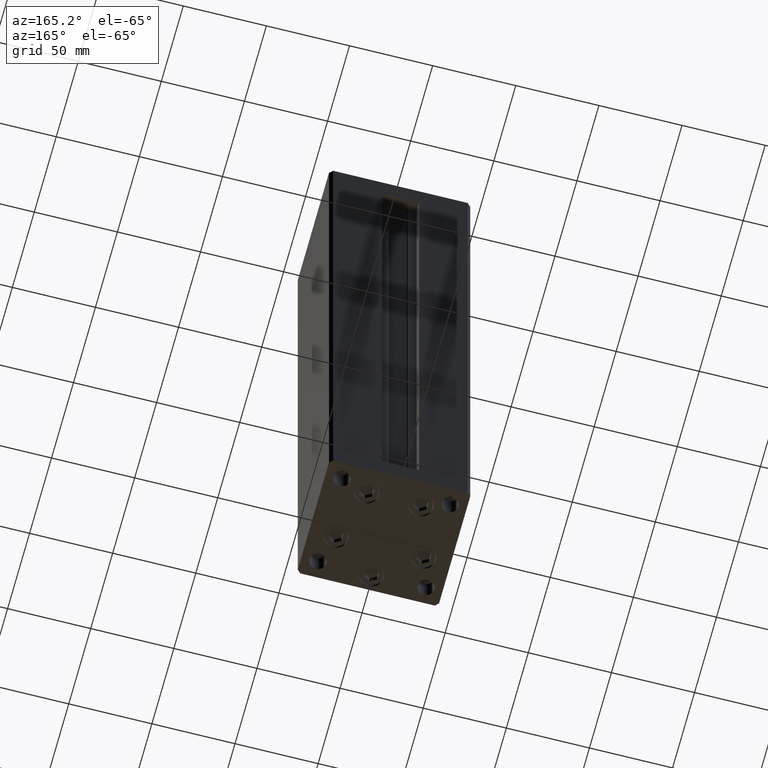
[diagram: clean part render]
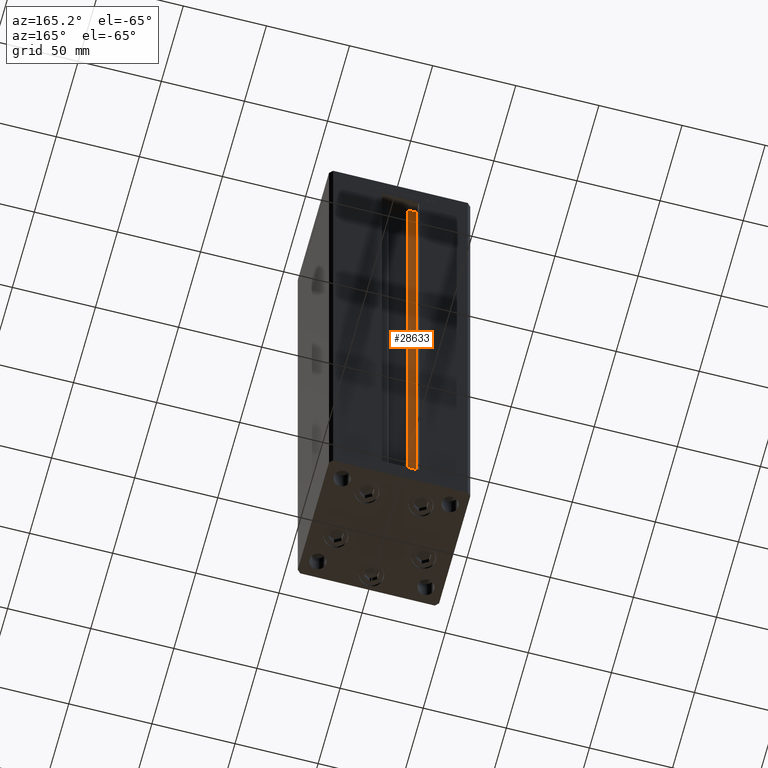
[diagram: same view with one face highlighted and labeled with its STEP entity id]
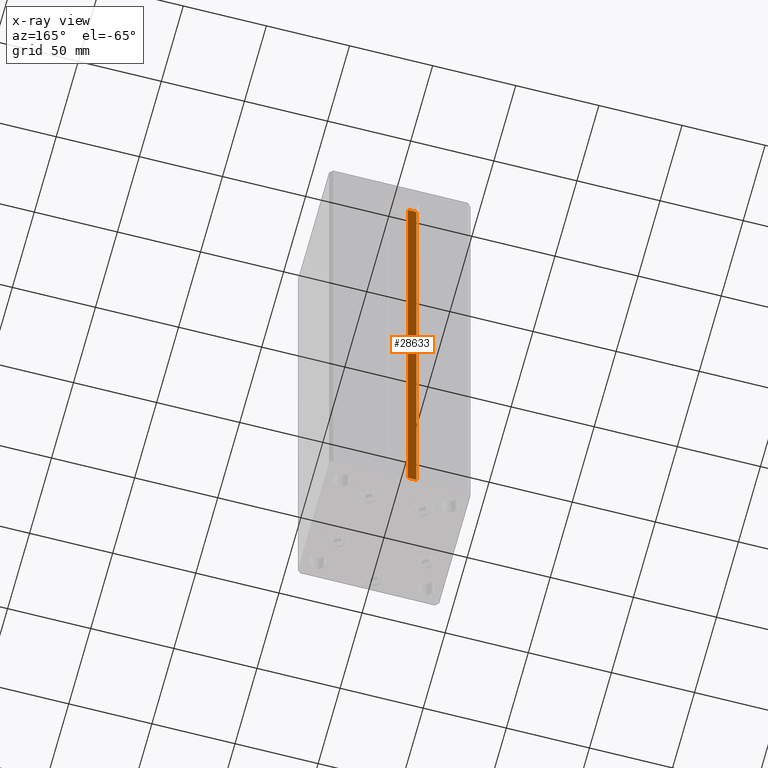
[diagram: x-ray of the same camera — body ghosted, the highlighted face saturated]
A machine part, auxiliary view. The second image highlights one B-rep face of the part: STEP entity #28633.
The next image is the same camera in x-ray: the body ghosted, the highlighted face saturated — about 0% of this face is hidden behind the body in this view.
In plain terms, the highlighted planar face has unit normal (0, -1, 0).
Its self-contained STEP definition (entity closure, byte-faithful):
#677 = CARTESIAN_POINT ( 'NONE',  ( -11.25000000000000000, 30.99999999999999289, 0.000000000000000000 ) ) ;
#3339 = VECTOR ( 'NONE', #16403, 1000.000000000000000 ) ;
#3777 = VERTEX_POINT ( 'NONE', #32233 ) ;
#4972 = DIRECTION ( 'NONE',  ( 0.000000000000000000, 0.000000000000000000, -1.000000000000000000 ) ) ;
#6189 = EDGE_CURVE ( 'NONE', #18842, #29508, #40349, .T. ) ;
#9491 = EDGE_CURVE ( 'NONE', #26041, #29508, #31883, .T. ) ;
#11188 = ORIENTED_EDGE ( 'NONE', *, *, #13674, .F. ) ;
#11785 = ORIENTED_EDGE ( 'NONE', *, *, #6189, .T. ) ;
#13674 = EDGE_CURVE ( 'NONE', #18842, #3777, #36566, .T. ) ;
#16403 = DIRECTION ( 'NONE',  ( -1.000000000000000000, 0.000000000000000000, 0.000000000000000000 ) ) ;
#18477 = ORIENTED_EDGE ( 'NONE', *, *, #9491, .F. ) ;
#18842 = VERTEX_POINT ( 'NONE', #677 ) ;
#19424 = CARTESIAN_POINT ( 'NONE',  ( -6.183333333333999704, 30.99999999999999289, 0.000000000000000000 ) ) ;
#20056 = DIRECTION ( 'NONE',  ( 1.000000000000000000, -0.000000000000000000, -0.000000000000000000 ) ) ;
#20438 = PLANE ( 'NONE',  #48859 ) ;
#24254 = CARTESIAN_POINT ( 'NONE',  ( 0.000000000000000000, 30.99999999999999289, 368.5000000000000000 ) ) ;
#25240 = CARTESIAN_POINT ( 'NONE',  ( -11.25000000000000000, 30.99999999999999289, 368.5000000000000000 ) ) ;
#26041 = VERTEX_POINT ( 'NONE', #43994 ) ;
#26191 = ORIENTED_EDGE ( 'NONE', *, *, #39936, .F. ) ;
#26649 = VECTOR ( 'NONE', #41381, 1000.000000000000000 ) ;
#27441 = EDGE_LOOP ( 'NONE', ( #26191, #11188, #11785, #18477 ) ) ;
#28633 = ADVANCED_FACE ( 'NONE', ( #48190 ), #20438, .F. ) ;
#29367 = CARTESIAN_POINT ( 'NONE',  ( -11.25000000000000000, 30.99999999999999289, 0.000000000000000000 ) ) ;
#29508 = VERTEX_POINT ( 'NONE', #25240 ) ;
#31234 = LINE ( 'NONE', #19424, #48048 ) ;
#31883 = LINE ( 'NONE', #24254, #3339 ) ;
#32233 = CARTESIAN_POINT ( 'NONE',  ( -6.183333333333999704, 30.99999999999999289, 0.000000000000000000 ) ) ;
#36566 = LINE ( 'NONE', #48845, #41045 ) ;
#37219 = DIRECTION ( 'NONE',  ( 0.000000000000000000, -1.000000000000000000, -0.000000000000000000 ) ) ;
#38834 = DIRECTION ( 'NONE',  ( -0.000000000000000000, -0.000000000000000000, 1.000000000000000000 ) ) ;
#39936 = EDGE_CURVE ( 'NONE', #3777, #26041, #31234, .T. ) ;
#40349 = LINE ( 'NONE', #29367, #26649 ) ;
#41045 = VECTOR ( 'NONE', #20056, 1000.000000000000000 ) ;
#41381 = DIRECTION ( 'NONE',  ( -0.000000000000000000, -0.000000000000000000, 1.000000000000000000 ) ) ;
#43994 = CARTESIAN_POINT ( 'NONE',  ( -6.183333333333999704, 30.99999999999999289, 368.5000000000000000 ) ) ;
#48048 = VECTOR ( 'NONE', #38834, 1000.000000000000000 ) ;
#48190 = FACE_OUTER_BOUND ( 'NONE', #27441, .T. ) ;
#48845 = CARTESIAN_POINT ( 'NONE',  ( -6.183333333333999704, 30.99999999999999289, 0.000000000000000000 ) ) ;
#48859 = AXIS2_PLACEMENT_3D ( 'NONE', #48972, #37219, #4972 ) ;
#48972 = CARTESIAN_POINT ( 'NONE',  ( -6.183333333333999704, 30.99999999999999289, 0.000000000000000000 ) ) ;